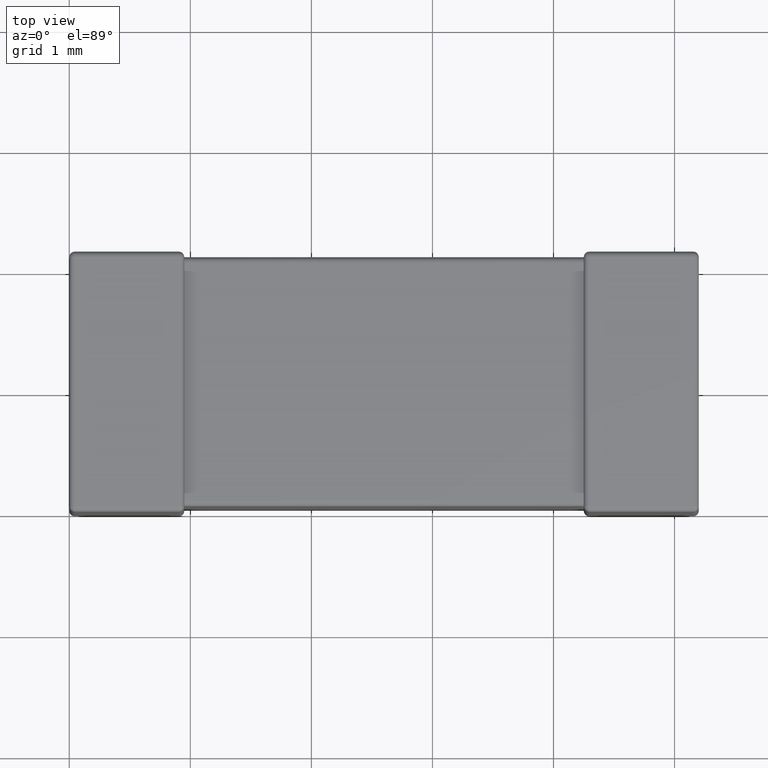
[diagram: clean part render]
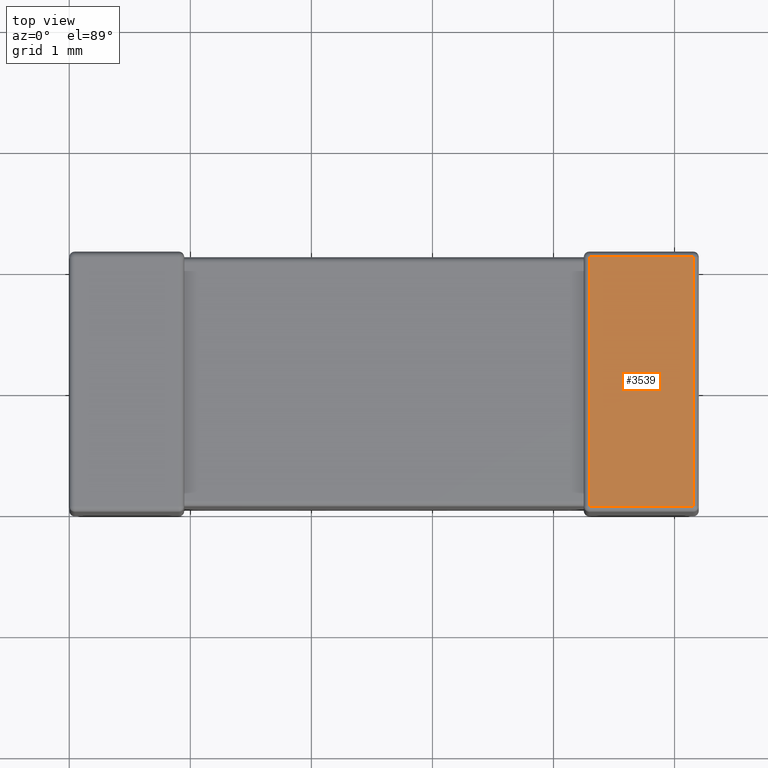
[diagram: same view with one face highlighted and labeled with its STEP entity id]
A machine part, top view. The second image highlights one B-rep face of the part: STEP entity #3539.
In plain terms, the highlighted planar face has unit normal (0, 0, -1).
Its self-contained STEP definition (entity closure, byte-faithful):
#611 = CARTESIAN_POINT ( 'NONE',  ( 4.295759999999999600, 2.104239999999999900, 0.0000000000000000000 ) ) ;
#626 = ORIENTED_EDGE ( 'NONE', *, *, #2517, .T. ) ;
#695 = ORIENTED_EDGE ( 'NONE', *, *, #1154, .T. ) ;
#963 = AXIS2_PLACEMENT_3D ( 'NONE', #3066, #2325, #2685 ) ;
#1150 = LINE ( 'NONE', #4570, #3976 ) ;
#1154 = EDGE_CURVE ( 'NONE', #2610, #2956, #2937, .T. ) ;
#1260 = ORIENTED_EDGE ( 'NONE', *, *, #1803, .T. ) ;
#1286 = DIRECTION ( 'NONE',  ( -0.0000000000000000000, -1.000000000000000000, -0.0000000000000000000 ) ) ;
#1403 = LINE ( 'NONE', #2425, #1950 ) ;
#1427 = VERTEX_POINT ( 'NONE', #4021 ) ;
#1595 = FACE_OUTER_BOUND ( 'NONE', #2010, .T. ) ;
#1645 = CARTESIAN_POINT ( 'NONE',  ( 4.295759999999999600, 0.0000000000000000000, 0.0000000000000000000 ) ) ;
#1657 = PLANE ( 'NONE',  #963 ) ;
#1803 = EDGE_CURVE ( 'NONE', #2415, #1427, #1403, .T. ) ;
#1950 = VECTOR ( 'NONE', #4223, 1000.000000000000000 ) ;
#2010 = EDGE_LOOP ( 'NONE', ( #1260, #3992, #695, #626 ) ) ;
#2068 = DIRECTION ( 'NONE',  ( -0.0000000000000000000, 1.000000000000000000, -0.0000000000000000000 ) ) ;
#2325 = DIRECTION ( 'NONE',  ( 0.0000000000000000000, 0.0000000000000000000, -1.000000000000000000 ) ) ;
#2415 = VERTEX_POINT ( 'NONE', #4275 ) ;
#2425 = CARTESIAN_POINT ( 'NONE',  ( 5.200000000000000200, 0.04576000000000000200, 0.0000000000000000000 ) ) ;
#2517 = EDGE_CURVE ( 'NONE', #2956, #2415, #2790, .T. ) ;
#2610 = VERTEX_POINT ( 'NONE', #4541 ) ;
#2685 = DIRECTION ( 'NONE',  ( -1.000000000000000000, 0.0000000000000000000, -0.0000000000000000000 ) ) ;
#2790 = LINE ( 'NONE', #1645, #2912 ) ;
#2912 = VECTOR ( 'NONE', #1286, 1000.000000000000000 ) ;
#2937 = LINE ( 'NONE', #4374, #3092 ) ;
#2956 = VERTEX_POINT ( 'NONE', #611 ) ;
#3066 = CARTESIAN_POINT ( 'NONE',  ( 5.200000000000000200, 0.0000000000000000000, 0.0000000000000000000 ) ) ;
#3092 = VECTOR ( 'NONE', #4335, 1000.000000000000000 ) ;
#3539 = ADVANCED_FACE ( 'NONE', ( #1595 ), #1657, .F. ) ;
#3976 = VECTOR ( 'NONE', #2068, 1000.000000000000000 ) ;
#3992 = ORIENTED_EDGE ( 'NONE', *, *, #4542, .T. ) ;
#4021 = CARTESIAN_POINT ( 'NONE',  ( 5.154239999999999700, 0.04576000000000000200, 0.0000000000000000000 ) ) ;
#4223 = DIRECTION ( 'NONE',  ( 1.000000000000000000, -0.0000000000000000000, -0.0000000000000000000 ) ) ;
#4275 = CARTESIAN_POINT ( 'NONE',  ( 4.295759999999999600, 0.04576000000000000200, 0.0000000000000000000 ) ) ;
#4335 = DIRECTION ( 'NONE',  ( -1.000000000000000000, 0.0000000000000000000, 0.0000000000000000000 ) ) ;
#4374 = CARTESIAN_POINT ( 'NONE',  ( 5.200000000000000200, 2.104239999999999900, 0.0000000000000000000 ) ) ;
#4541 = CARTESIAN_POINT ( 'NONE',  ( 5.154239999999999700, 2.104239999999999900, 0.0000000000000000000 ) ) ;
#4542 = EDGE_CURVE ( 'NONE', #1427, #2610, #1150, .T. ) ;
#4570 = CARTESIAN_POINT ( 'NONE',  ( 5.154239999999999700, 0.0000000000000000000, 0.0000000000000000000 ) ) ;